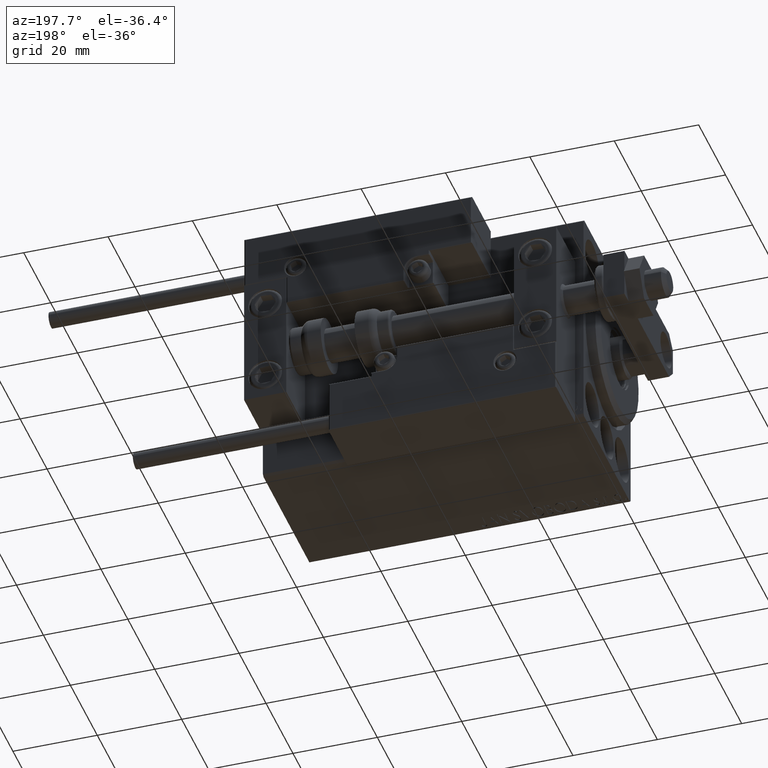
[diagram: clean part render]
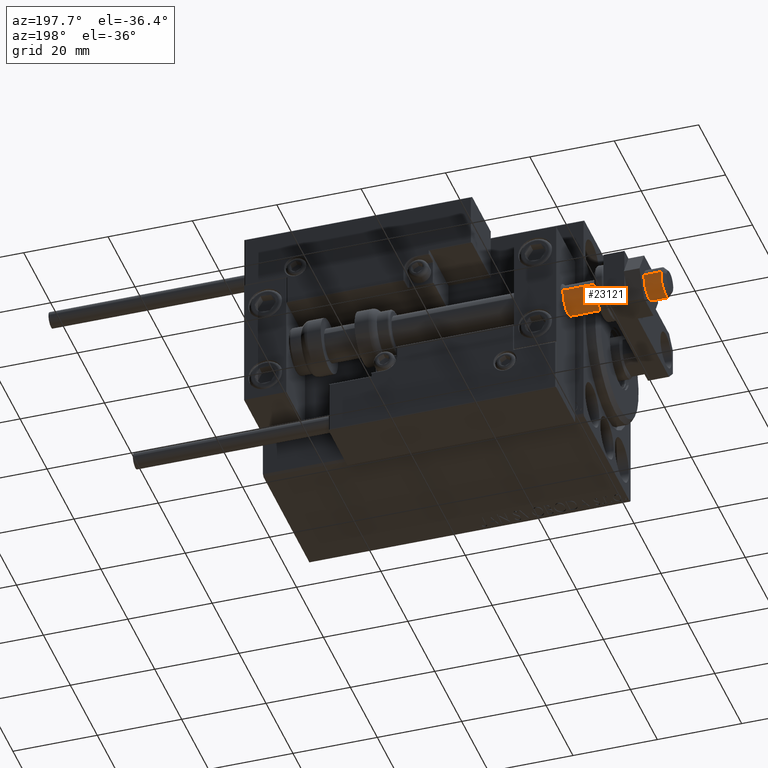
[diagram: same view with one face highlighted and labeled with its STEP entity id]
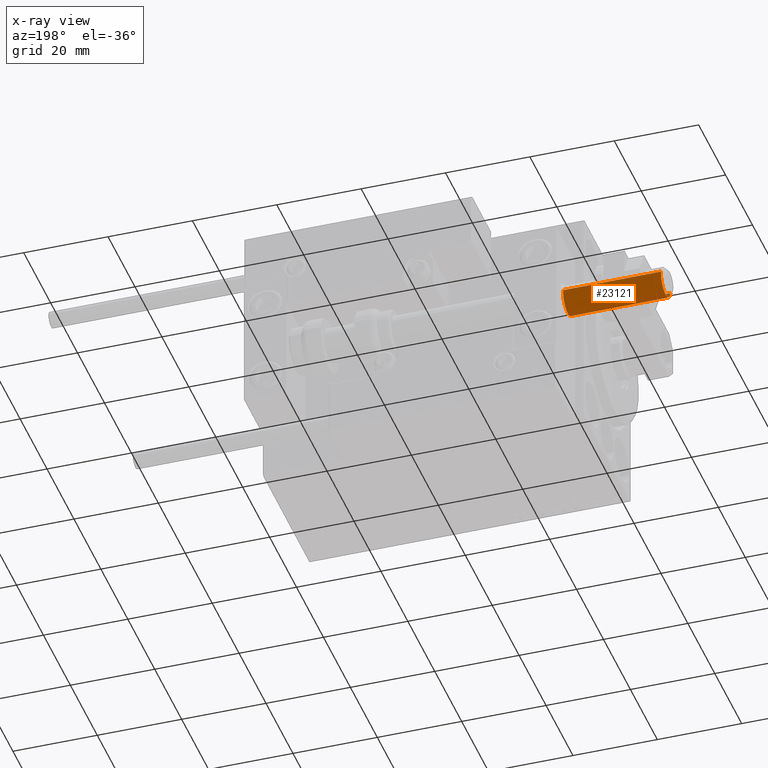
[diagram: x-ray of the same camera — body ghosted, the highlighted face saturated]
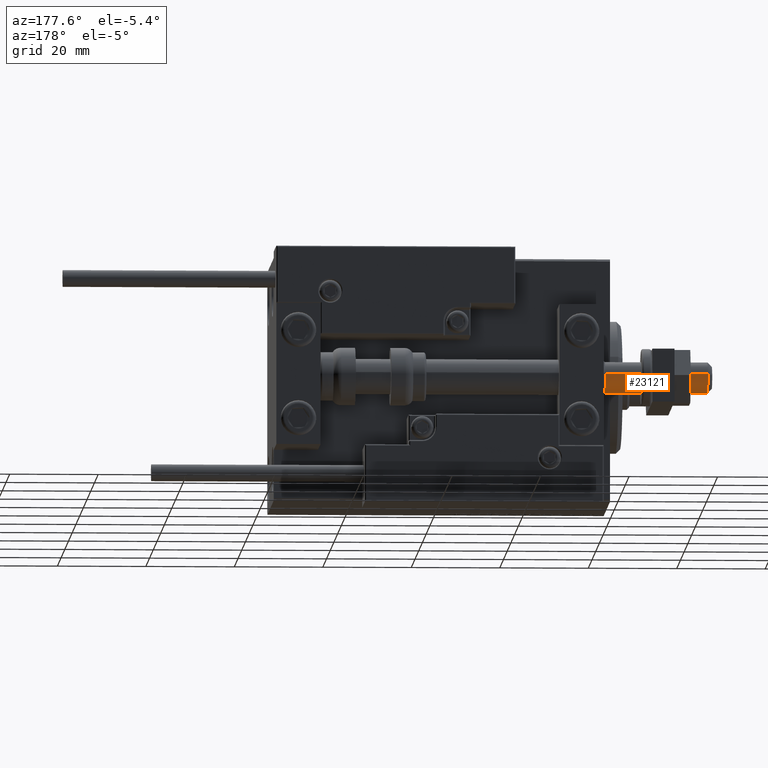
[diagram: same view with one face highlighted and labeled with its STEP entity id]
A machine part, auxiliary view. The second image highlights one B-rep face of the part: STEP entity #23121.
The next image is the same camera in x-ray: the body ghosted, the highlighted face saturated — about 0% of this face is hidden behind the body in this view.
A second angle (auxiliary view) of the same face is appended — the face is thin or edge-on in the first view.
In plain terms, the highlighted cylindrical surface (edge-blend (fillet) strip) has radius 3.5 mm, axis along (1, -0, -0).
Its self-contained STEP definition (entity closure, byte-faithful):
#65 = DIRECTION ( 'NONE',  ( 0.000000000000000000, 0.000000000000000000, -1.000000000000000000 ) ) ;
#186 = CIRCLE ( 'NONE', #47970, 3.500000000000000000 ) ;
#573 = CARTESIAN_POINT ( 'NONE',  ( -3.500000000000000000, 4.286263797015736595E-16, 1.500000000000025535 ) ) ;
#3245 = CARTESIAN_POINT ( 'NONE',  ( 3.500000000000000000, 0.000000000000000000, 1.500000000000025535 ) ) ;
#3870 = ORIENTED_EDGE ( 'NONE', *, *, #18593, .T. ) ;
#4846 = CARTESIAN_POINT ( 'NONE',  ( -3.500000000000000000, 4.286263797015736595E-16, -21.69999999999998508 ) ) ;
#7014 = CARTESIAN_POINT ( 'NONE',  ( -3.500000000000000000, 4.286263797015736595E-16, -22.69999999999999929 ) ) ;
#7367 = DIRECTION ( 'NONE',  ( -0.000000000000000000, -0.000000000000000000, 1.000000000000000000 ) ) ;
#7623 = LINE ( 'NONE', #38276, #17803 ) ;
#9190 = DIRECTION ( 'NONE',  ( -1.000000000000000000, 0.000000000000000000, 0.000000000000000000 ) ) ;
#10602 = CIRCLE ( 'NONE', #21133, 3.500000000000000000 ) ;
#12251 = EDGE_CURVE ( 'NONE', #17242, #13804, #45534, .T. ) ;
#12715 = EDGE_CURVE ( 'NONE', #42351, #13804, #186, .T. ) ;
#13804 = VERTEX_POINT ( 'NONE', #573 ) ;
#15552 = DIRECTION ( 'NONE',  ( 1.000000000000000000, 0.000000000000000000, 0.000000000000000000 ) ) ;
#17242 = VERTEX_POINT ( 'NONE', #4846 ) ;
#17311 = CARTESIAN_POINT ( 'NONE',  ( 3.500000000000000000, 0.000000000000000000, -21.69999999999998508 ) ) ;
#17803 = VECTOR ( 'NONE', #7367, 1000.000000000000000 ) ;
#18593 = EDGE_CURVE ( 'NONE', #17242, #36094, #10602, .T. ) ;
#21128 = CYLINDRICAL_SURFACE ( 'NONE', #40749, 3.500000000000000000 ) ;
#21133 = AXIS2_PLACEMENT_3D ( 'NONE', #36295, #31744, #9190 ) ;
#23121 = ADVANCED_FACE ( 'NONE', ( #47482 ), #21128, .T. ) ;
#26206 = CARTESIAN_POINT ( 'NONE',  ( 0.000000000000000000, 0.000000000000000000, 1.500000000000025535 ) ) ;
#27636 = EDGE_LOOP ( 'NONE', ( #32191, #3870, #46758, #43232 ) ) ;
#28963 = DIRECTION ( 'NONE',  ( -0.000000000000000000, -0.000000000000000000, 1.000000000000000000 ) ) ;
#31744 = DIRECTION ( 'NONE',  ( 0.000000000000000000, 0.000000000000000000, 1.000000000000000000 ) ) ;
#32191 = ORIENTED_EDGE ( 'NONE', *, *, #12251, .F. ) ;
#36094 = VERTEX_POINT ( 'NONE', #17311 ) ;
#36295 = CARTESIAN_POINT ( 'NONE',  ( 0.000000000000000000, 0.000000000000000000, -21.69999999999998508 ) ) ;
#36326 = CARTESIAN_POINT ( 'NONE',  ( 0.000000000000000000, 0.000000000000000000, -22.69999999999999929 ) ) ;
#37424 = DIRECTION ( 'NONE',  ( -0.000000000000000000, -0.000000000000000000, 1.000000000000000000 ) ) ;
#38276 = CARTESIAN_POINT ( 'NONE',  ( 3.500000000000000000, 0.000000000000000000, -22.69999999999999929 ) ) ;
#40749 = AXIS2_PLACEMENT_3D ( 'NONE', #36326, #28963, #47734 ) ;
#42351 = VERTEX_POINT ( 'NONE', #3245 ) ;
#43232 = ORIENTED_EDGE ( 'NONE', *, *, #12715, .T. ) ;
#44888 = EDGE_CURVE ( 'NONE', #36094, #42351, #7623, .T. ) ;
#45534 = LINE ( 'NONE', #7014, #49526 ) ;
#46758 = ORIENTED_EDGE ( 'NONE', *, *, #44888, .T. ) ;
#47482 = FACE_OUTER_BOUND ( 'NONE', #27636, .T. ) ;
#47734 = DIRECTION ( 'NONE',  ( 1.000000000000000000, 0.000000000000000000, 0.000000000000000000 ) ) ;
#47970 = AXIS2_PLACEMENT_3D ( 'NONE', #26206, #65, #15552 ) ;
#49526 = VECTOR ( 'NONE', #37424, 1000.000000000000000 ) ;